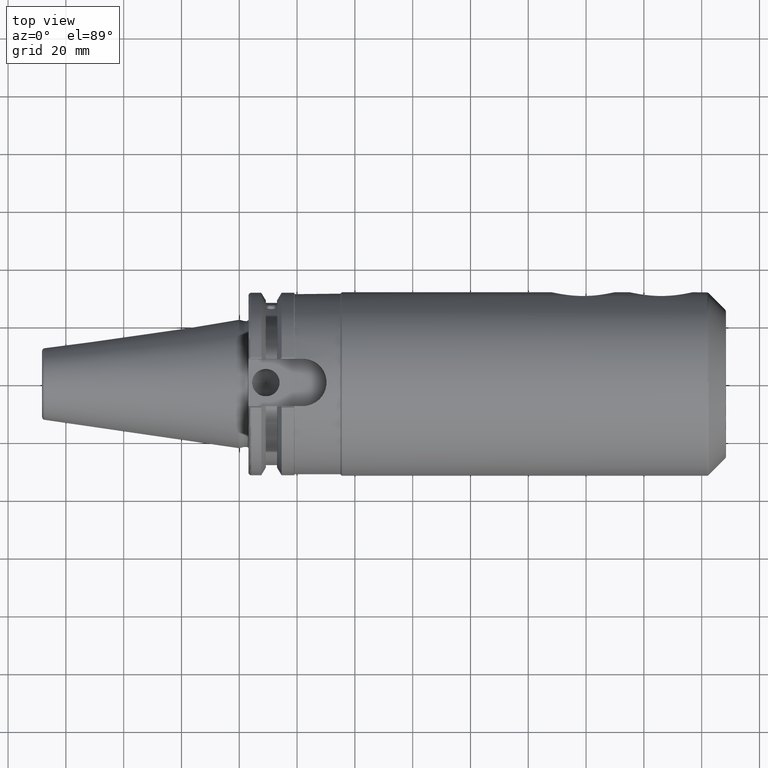
[diagram: clean part render]
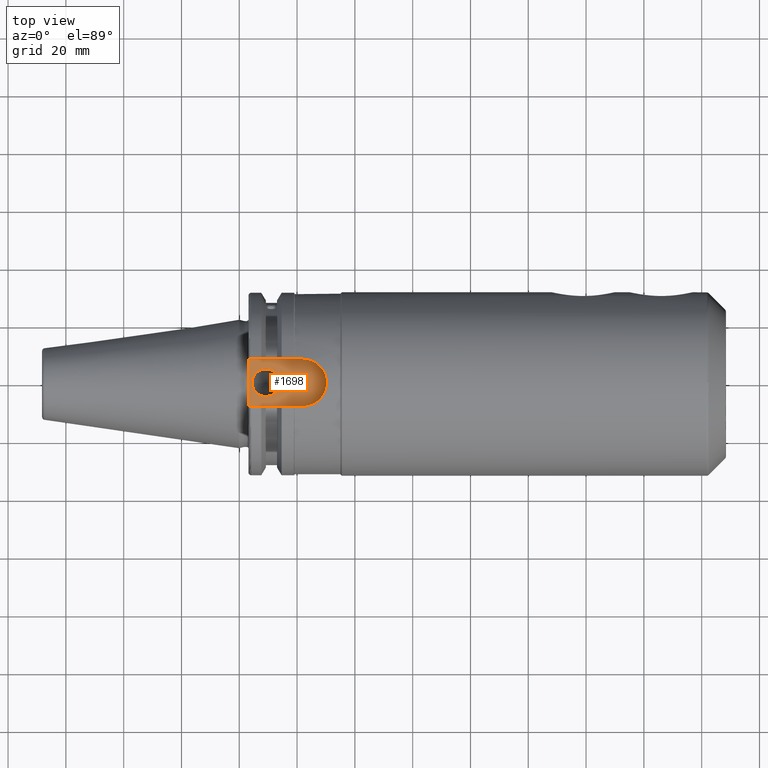
[diagram: same view with one face highlighted and labeled with its STEP entity id]
A machine part, top view. The second image highlights one B-rep face of the part: STEP entity #1698.
In plain terms, the highlighted planar face has unit normal (0, 0, 1).
Its self-contained STEP definition (entity closure, byte-faithful):
#66=FACE_BOUND('',#341,.T.);
#100=PLANE('',#1912);
#231=FACE_OUTER_BOUND('',#340,.T.);
#340=EDGE_LOOP('',(#1576,#1577,#1578,#1579));
#341=EDGE_LOOP('',(#1580));
#418=CIRCLE('',#1768,8.19);
#467=CIRCLE('',#1897,4.7625);
#531=LINE('',#3208,#623);
#555=LINE('',#3406,#647);
#556=LINE('',#3408,#648);
#623=VECTOR('',#2234,10.);
#647=VECTOR('',#2318,10.);
#648=VECTOR('',#2321,10.);
#704=VERTEX_POINT('',#2720);
#705=VERTEX_POINT('',#2722);
#788=VERTEX_POINT('',#3205);
#789=VERTEX_POINT('',#3207);
#827=VERTEX_POINT('',#3440);
#888=EDGE_CURVE('',#705,#704,#418,.T.);
#1004=EDGE_CURVE('',#788,#789,#531,.T.);
#1058=EDGE_CURVE('',#788,#705,#555,.T.);
#1059=EDGE_CURVE('',#704,#789,#556,.T.);
#1072=EDGE_CURVE('',#827,#827,#467,.T.);
#1576=ORIENTED_EDGE('',*,*,#1004,.F.);
#1577=ORIENTED_EDGE('',*,*,#1058,.T.);
#1578=ORIENTED_EDGE('',*,*,#888,.T.);
#1579=ORIENTED_EDGE('',*,*,#1059,.T.);
#1580=ORIENTED_EDGE('',*,*,#1072,.T.);
#1698=ADVANCED_FACE('',(#231,#66),#100,.T.);
#1768=AXIS2_PLACEMENT_3D('',#2723,#2022,#2023);
#1897=AXIS2_PLACEMENT_3D('',#3441,#2351,#2352);
#1912=AXIS2_PLACEMENT_3D('',#3457,#2382,#2383);
#2022=DIRECTION('center_axis',(0.,0.,1.));
#2023=DIRECTION('ref_axis',(1.08446693492079E-15,-1.,0.));
#2234=DIRECTION('',(0.,1.,0.));
#2318=DIRECTION('',(1.,3.54138125877243E-16,0.));
#2321=DIRECTION('',(-1.,0.,0.));
#2351=DIRECTION('center_axis',(0.,0.,-1.));
#2352=DIRECTION('ref_axis',(1.,0.,0.));
#2382=DIRECTION('center_axis',(0.,0.,1.));
#2383=DIRECTION('ref_axis',(1.,0.,0.));
#2720=CARTESIAN_POINT('',(21.985,8.18999999999999,25.));
#2722=CARTESIAN_POINT('',(21.985,-8.19,25.));
#2723=CARTESIAN_POINT('Origin',(21.985,3.80260901255061E-15,25.));
#3205=CARTESIAN_POINT('',(3.175,-8.19000000000001,25.));
#3207=CARTESIAN_POINT('',(3.175,8.18999999999999,25.));
#3208=CARTESIAN_POINT('',(3.175,15.875,25.));
#3406=CARTESIAN_POINT('',(3.175,-8.19000000000001,25.));
#3408=CARTESIAN_POINT('',(21.985,8.18999999999999,25.));
#3440=CARTESIAN_POINT('',(4.4125,-5.83238038093927E-16,25.));
#3441=CARTESIAN_POINT('Origin',(9.175,0.,25.));
#3457=CARTESIAN_POINT('Origin',(15.7075,0.,25.));